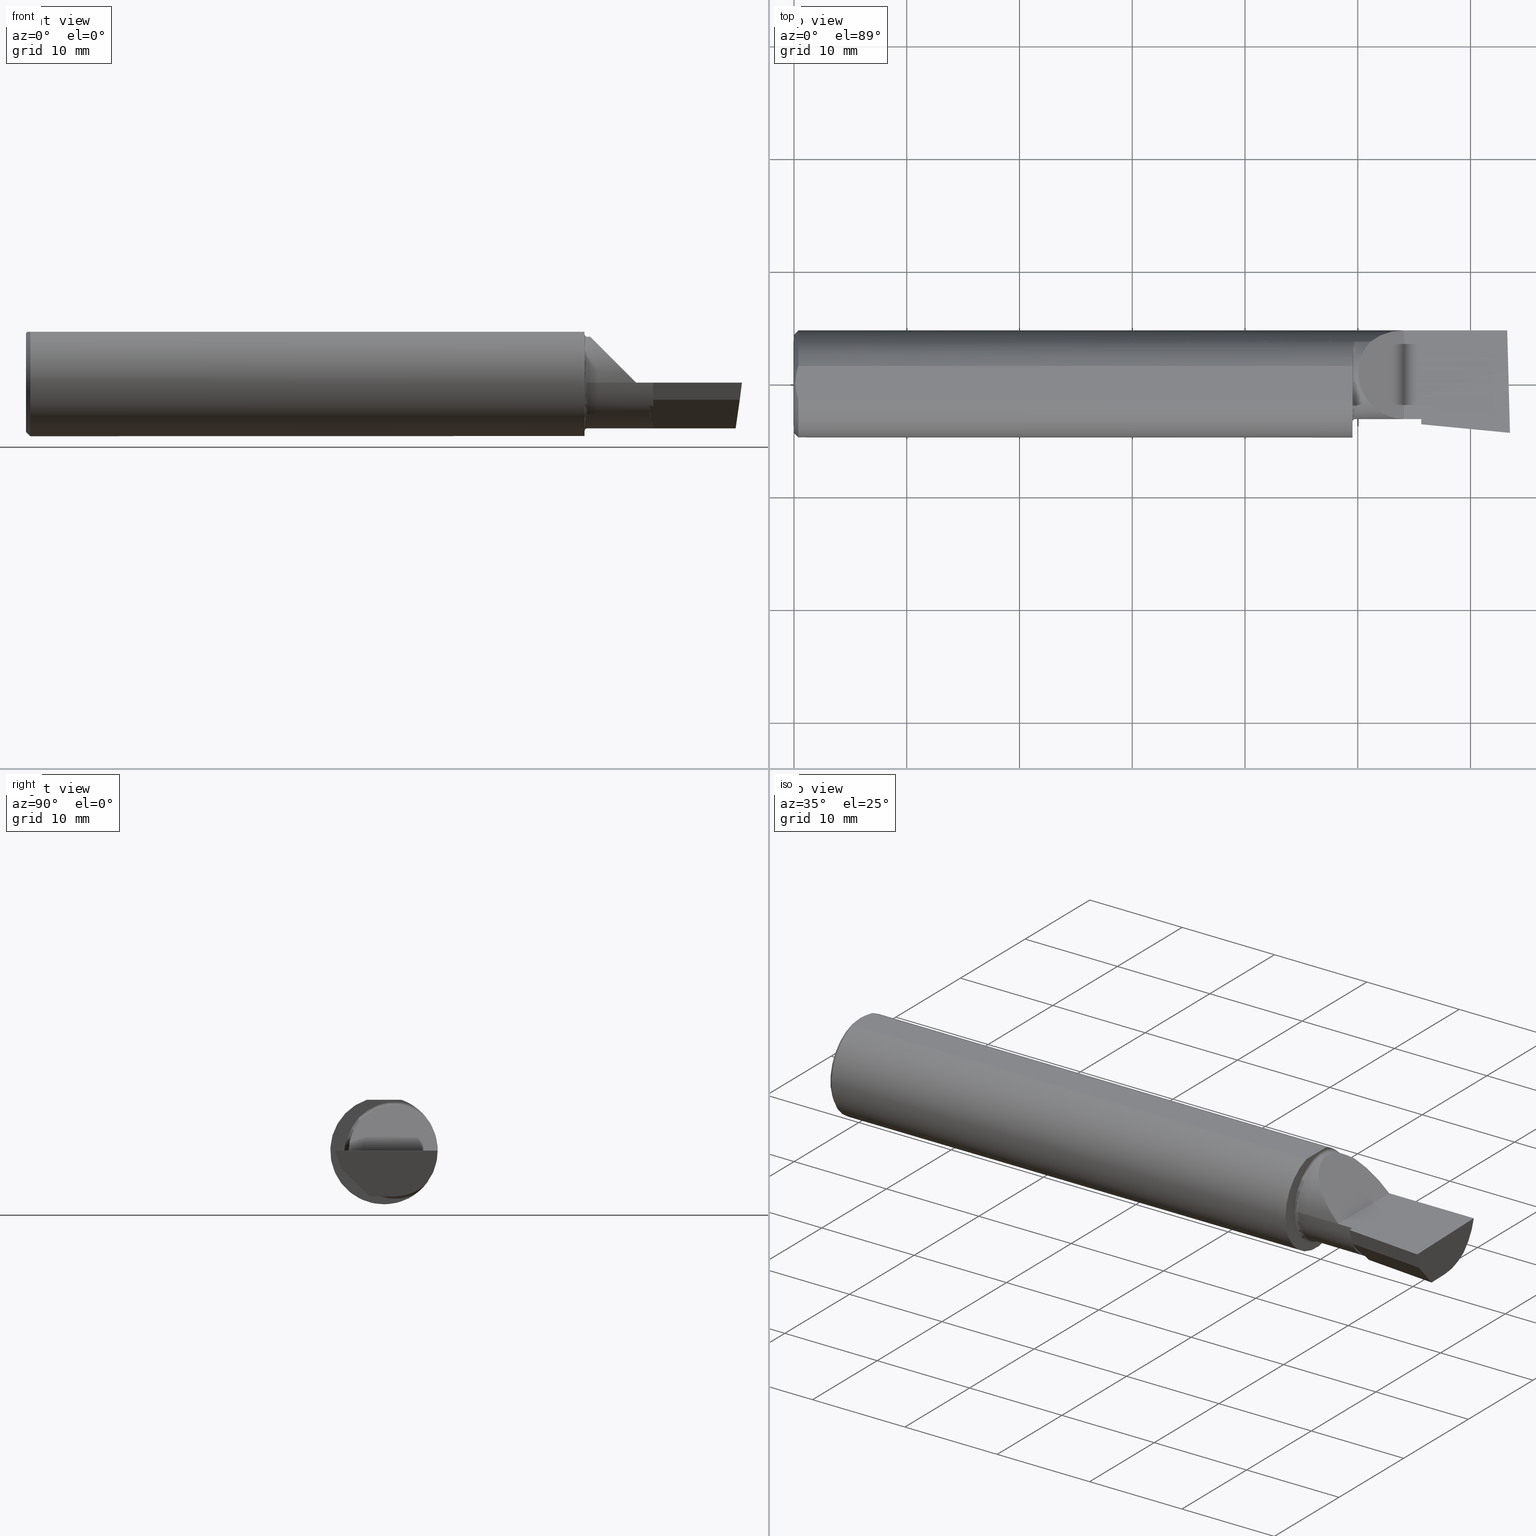
[diagram: canonical four-view strip — front | top / right | iso, engineering-drawing reading convention]
A machine part, canonical four-view strip (front | top / right | iso — engineering-drawing reading convention). The complete STEP part file that produces these views, byte-faithful:
ISO-10303-21;
HEADER;
FILE_DESCRIPTION (( 'STEP AP203' ),
    '1' );
FILE_NAME ('212130-LHB360500.STEP',
    '2024-08-27T20:59:36',
    ( '' ),
    ( '' ),
    'SwSTEP 2.0',
    'SolidWorks 2024',
    '' );
FILE_SCHEMA (( 'CONFIG_CONTROL_DESIGN' ));
ENDSEC;

DATA;
#1 = DIRECTION ( 'NONE',  ( -1.000000000000000000, 6.829619984160658046E-18, -0.000000000000000000 ) ) ;
#2 = EDGE_CURVE ( 'NONE', #267, #449, #276, .T. ) ;
#3 = CARTESIAN_POINT ( 'NONE',  ( 1.902393788885675230, 0.02584108761840278254, 0.2276062111143223043 ) ) ;
#4 = APPROVAL_STATUS ( 'not_yet_approved' ) ;
#5 = CARTESIAN_POINT ( 'NONE',  ( 2.175820948016079726, -0.1204296831016317265, -0.05999999999999983125 ) ) ;
#6 = CARTESIAN_POINT ( 'NONE',  ( 1.950000000000000178, -0.06039039658753697637, 0.1773499999999999799 ) ) ;
#7 = EDGE_CURVE ( 'NONE', #279, #362, #379, .T. ) ;
#8 = ORIENTED_EDGE ( 'NONE', *, *, #97, .T. ) ;
#9 = PERSON_AND_ORGANIZATION ( #331, #674 ) ;
#10 = CARTESIAN_POINT ( 'NONE',  ( 2.178943348991506213, -0.08800230912842126052, -0.1032508154956445351 ) ) ;
#11 = EDGE_CURVE ( 'NONE', #477, #620, #131, .T. ) ;
#12 = EDGE_LOOP ( 'NONE', ( #187, #143, #112, #452 ) ) ;
#13 = AXIS2_PLACEMENT_3D ( 'NONE', #326, #652, #437 ) ;
#14 = CARTESIAN_POINT ( 'NONE',  ( 0.01499999999999999424, 0.000000000000000000, 0.000000000000000000 ) ) ;
#15 = DIRECTION ( 'NONE',  ( -0.9953961983671787417, 0.09584575252022420333, -1.549503674720205804E-17 ) ) ;
#16 = LINE ( 'NONE', #399, #85 ) ;
#17 = DIRECTION ( 'NONE',  ( 1.000000000000000000, -6.829619984160658046E-18, 0.000000000000000000 ) ) ;
#18 = ORIENTED_EDGE ( 'NONE', *, *, #357, .T. ) ;
#19 = CARTESIAN_POINT ( 'NONE',  ( 1.957909242887170276, 0.1445870704379408622, -0.1191421054870969581 ) ) ;
#20 = CC_DESIGN_APPROVAL ( #193, ( #567 ) ) ;
#21 = CARTESIAN_POINT ( 'NONE',  ( 2.129999999999999893, 0.1873499999999998222, 2.290089514405551589E-16 ) ) ;
#22 = ORIENTED_EDGE ( 'NONE', *, *, #33, .F. ) ;
#23 = AXIS2_PLACEMENT_3D ( 'NONE', #673, #396, #76 ) ;
#24 = CARTESIAN_POINT ( 'NONE',  ( 1.958770022656895371, 0.1452078353828880897, -0.1183847404910813444 ) ) ;
#25 = AXIS2_PLACEMENT_3D ( 'NONE', #419, #646, #271 ) ;
#26 = PLANE ( 'NONE',  #264 ) ;
#27 = ORIENTED_EDGE ( 'NONE', *, *, #268, .F. ) ;
#28 = CARTESIAN_POINT ( 'NONE',  ( 0.000000000000000000, 0.000000000000000000, 0.000000000000000000 ) ) ;
#29 = LINE ( 'NONE', #451, #107 ) ;
#30 = ADVANCED_FACE ( 'NONE', ( #439 ), #649, .T. ) ;
#31 = DIRECTION ( 'NONE',  ( 1.000000000000000000, 0.000000000000000000, 0.000000000000000000 ) ) ;
#32 = CARTESIAN_POINT ( 'NONE',  ( 2.485269663752128988, 0.1873500000000000443, -0.04340998088356425727 ) ) ;
#33 = EDGE_CURVE ( 'NONE', #215, #77, #122, .T. ) ;
#34 = PERSON_AND_ORGANIZATION_ROLE ( 'creator' ) ;
#35 = CARTESIAN_POINT ( 'NONE',  ( 2.474391802280965447, 0.07789060880782650020, -0.1600499999999999978 ) ) ;
#36 = EDGE_CURVE ( 'NONE', #449, #174, #335, .T. ) ;
#37 = CARTESIAN_POINT ( 'NONE',  ( 0.01499999999999999424, 0.000000000000000000, 0.000000000000000000 ) ) ;
#38 = VERTEX_POINT ( 'NONE', #282 ) ;
#39 = PERSON_AND_ORGANIZATION ( #331, #674 ) ;
#40 = CARTESIAN_POINT ( 'NONE',  ( 2.045676520271627830, 0.1728409665178085586, 0.08432347972837210548 ) ) ;
#41 = ORIENTED_EDGE ( 'NONE', *, *, #315, .F. ) ;
#42 = LOCAL_TIME ( 13, 59, 36.00000000000000000, #541 ) ;
#43 = ORIENTED_EDGE ( 'NONE', *, *, #244, .T. ) ;
#44 = DIRECTION ( 'NONE',  ( -0.06717917588521388206, -0.6976824170844043715, 0.7132504491541848957 ) ) ;
#45 = CARTESIAN_POINT ( 'NONE',  ( 0.005896899252109526549, -0.02043863390046160924, 0.1773500000000000354 ) ) ;
#46 = VECTOR ( 'NONE', #15, 39.37007874015748854 ) ;
#47 = ORIENTED_EDGE ( 'NONE', *, *, #244, .F. ) ;
#48 = AXIS2_PLACEMENT_3D ( 'NONE', #37, #471, #691 ) ;
#49 = CARTESIAN_POINT ( 'NONE',  ( 2.189999999999999947, -0.04642774919836933911, -0.1363411565314570917 ) ) ;
#50 = EDGE_LOOP ( 'NONE', ( #319, #63 ) ) ;
#51 = CALENDAR_DATE ( 2024, 27, 8 ) ;
#52 = DIRECTION ( 'NONE',  ( -0.1175789623991730093, 0.000000000000000000, -0.9930635365378863710 ) ) ;
#53 = ORIENTED_EDGE ( 'NONE', *, *, #229, .T. ) ;
#54 = ADVANCED_FACE ( 'NONE', ( #62 ), #494, .F. ) ;
#55 = ORIENTED_EDGE ( 'NONE', *, *, #252, .T. ) ;
#56 = CALENDAR_DATE ( 2024, 27, 8 ) ;
#57 = CARTESIAN_POINT ( 'NONE',  ( 2.075000000000000178, 0.1454917112299465576, -0.1180346748349053593 ) ) ;
#58 = ORIENTED_EDGE ( 'NONE', *, *, #458, .T. ) ;
#59 = APPROVAL_DATE_TIME ( #64, #426 ) ;
#60 = CARTESIAN_POINT ( 'NONE',  ( 2.189999999999999947, 0.03739999999999998881, 0.000000000000000000 ) ) ;
#61 = EDGE_CURVE ( 'NONE', #362, #595, #698, .T. ) ;
#62 = FACE_OUTER_BOUND ( 'NONE', #588, .T. ) ;
#63 = ORIENTED_EDGE ( 'NONE', *, *, #614, .T. ) ;
#64 = DATE_AND_TIME ( #378, #172 ) ;
#65 = DIRECTION ( 'NONE',  ( -1.000000000000000000, 6.829619984160658046E-18, -0.000000000000000000 ) ) ;
#66 = CC_DESIGN_PERSON_AND_ORGANIZATION_ASSIGNMENT ( #412, #34, ( #567 ) ) ;
#67 = CARTESIAN_POINT ( 'NONE',  ( 0.000000000000000000, 0.06039039658753699719, 0.1773499999999999799 ) ) ;
#68 = AXIS2_PLACEMENT_3D ( 'NONE', #423, #151, #31 ) ;
#69 = CARTESIAN_POINT ( 'NONE',  ( 0.000000000000000000, 0.000000000000000000, 0.000000000000000000 ) ) ;
#70 = ORIENTED_EDGE ( 'NONE', *, *, #650, .T. ) ;
#71 = DIRECTION ( 'NONE',  ( 0.9953961983671787417, -0.09584575252022417557, -1.557096167792191613E-16 ) ) ;
#72 = CARTESIAN_POINT ( 'NONE',  ( 2.185459073836549138, -0.04532669166221831719, -0.1370135507928378904 ) ) ;
#73 = ORIENTED_EDGE ( 'NONE', *, *, #136, .T. ) ;
#74 =( BOUNDED_CURVE ( )  B_SPLINE_CURVE ( 3, ( #400, #563, #299, #557 ),
 .UNSPECIFIED., .F., .T. ) 
 B_SPLINE_CURVE_WITH_KNOTS ( ( 4, 4 ),
 ( 2.879714720919916093, 2.901033340933480087 ),
 .UNSPECIFIED. ) 
 CURVE ( )  GEOMETRIC_REPRESENTATION_ITEM ( )  RATIONAL_B_SPLINE_CURVE ( ( 1.000000000000000000, 0.9999621267286613602, 0.9999621267286613602, 1.000000000000000000 ) ) 
 REPRESENTATION_ITEM ( '' )  );
#75 = CARTESIAN_POINT ( 'NONE',  ( 2.500000000000000444, -0.1706500000000001627, 2.390366994456230070E-16 ) ) ;
#76 = DIRECTION ( 'NONE',  ( 0.000000000000000000, -1.000000000000000000, 0.000000000000000000 ) ) ;
#77 = VERTEX_POINT ( 'NONE', #6 ) ;
#78 = ADVANCED_FACE ( 'NONE', ( #223 ), #668, .F. ) ;
#79 = DIRECTION ( 'NONE',  ( 6.829619984160658046E-18, 1.000000000000000000, -1.438723400918613551E-16 ) ) ;
#80 = LOCAL_TIME ( 13, 59, 36.00000000000000000, #221 ) ;
#81 = CARTESIAN_POINT ( 'NONE',  ( 0.000000000000000000, 0.000000000000000000, -0.1723499999999996424 ) ) ;
#82 = ORIENTED_EDGE ( 'NONE', *, *, #309, .F. ) ;
#83 = VECTOR ( 'NONE', #317, 39.37007874015748143 ) ;
#84 = CARTESIAN_POINT ( 'NONE',  ( 0.000000000000000000, 0.000000000000000000, 0.000000000000000000 ) ) ;
#85 = VECTOR ( 'NONE', #513, 39.37007874015748854 ) ;
#86 = CARTESIAN_POINT ( 'NONE',  ( 2.475494106117762882, 0.03674350325526463262, -0.1600499999999999701 ) ) ;
#87 = EDGE_CURVE ( 'NONE', #592, #595, #636, .T. ) ;
#88 = CARTESIAN_POINT ( 'NONE',  ( 2.189999999999999947, -0.02302137530785867275, -0.1600499999999999701 ) ) ;
#89 = EDGE_CURVE ( 'NONE', #681, #641, #619, .T. ) ;
#90 =( NAMED_UNIT ( * ) PLANE_ANGLE_UNIT ( ) SI_UNIT ( $, .RADIAN. ) );
#91 = CARTESIAN_POINT ( 'NONE',  ( 1.950000000000000178, 0.000000000000000000, 0.000000000000000000 ) ) ;
#92 = AXIS2_PLACEMENT_3D ( 'NONE', #358, #573, #313 ) ;
#93 = DIRECTION ( 'NONE',  ( -6.829619984160658816E-18, -1.000000000000000000, 0.000000000000000000 ) ) ;
#94 = DIRECTION ( 'NONE',  ( 6.829619984160658046E-18, 1.000000000000000000, 0.000000000000000000 ) ) ;
#95 = VECTOR ( 'NONE', #625, 39.37007874015748143 ) ;
#96 = ORIENTED_EDGE ( 'NONE', *, *, #391, .T. ) ;
#97 = EDGE_CURVE ( 'NONE', #77, #499, #561, .T. ) ;
#98 = MECHANICAL_CONTEXT ( 'NONE', #508, 'mechanical' ) ;
#99 = CARTESIAN_POINT ( 'NONE',  ( 2.490409415965618933, 0.1873499999999998777, 1.722253598772638556E-16 ) ) ;
#100 = ORIENTED_EDGE ( 'NONE', *, *, #309, .T. ) ;
#101 = CARTESIAN_POINT ( 'NONE',  ( 2.475476519002682618, 0.03739999999999996799, -0.1600499999999999701 ) ) ;
#102 = DIRECTION ( 'NONE',  ( -1.000000000000000000, 6.829619984160658046E-18, -0.000000000000000000 ) ) ;
#103 = CC_DESIGN_DATE_AND_TIME_ASSIGNMENT ( #651, #371, ( #686 ) ) ;
#104 = VERTEX_POINT ( 'NONE', #21 ) ;
#105 = APPROVAL_ROLE ( '' ) ;
#106 = DIRECTION ( 'NONE',  ( -6.829619984160658816E-18, -1.000000000000000000, 1.075544278672776307E-33 ) ) ;
#107 = VECTOR ( 'NONE', #138, 39.37007874015748143 ) ;
#108 = ORIENTED_EDGE ( 'NONE', *, *, #294, .F. ) ;
#109 = ADVANCED_FACE ( 'NONE', ( #568 ), #239, .F. ) ;
#110 = DIRECTION ( 'NONE',  ( -0.09584575252022423109, -0.9953961983671787417, 0.000000000000000000 ) ) ;
#111 = PRODUCT ( '212130-LHB360500', '212130-LHB360500', '', ( #98 ) ) ;
#112 = ORIENTED_EDGE ( 'NONE', *, *, #348, .T. ) ;
#113 = CC_DESIGN_PERSON_AND_ORGANIZATION_ASSIGNMENT ( #320, #486, ( #511 ) ) ;
#114 = ORIENTED_EDGE ( 'NONE', *, *, #240, .F. ) ;
#115 = LINE ( 'NONE', #442, #266 ) ;
#116 = ORIENTED_EDGE ( 'NONE', *, *, #7, .T. ) ;
#117 = AXIS2_PLACEMENT_3D ( 'NONE', #14, #181, #234 ) ;
#118 = DATE_AND_TIME ( #643, #418 ) ;
#119 = CARTESIAN_POINT ( 'NONE',  ( 1.950000000000000178, 0.2373500000000000332, 0.1773499999999999521 ) ) ;
#120 = MANIFOLD_SOLID_BREP ( 'Extrude7', #655 ) ;
#121 = CARTESIAN_POINT ( 'NONE',  ( 2.486877961997428166, -0.1130647732409290895, -0.09779851461133440282 ) ) ;
#122 = CIRCLE ( 'NONE', #459, 0.1873499999999999888 ) ;
#123 = AXIS2_PLACEMENT_3D ( 'NONE', #164, #1, #697 ) ;
#124 =( BOUNDED_CURVE ( )  B_SPLINE_CURVE ( 3, ( #529, #152, #32, #99 ),
 .UNSPECIFIED., .F., .T. ) 
 B_SPLINE_CURVE_WITH_KNOTS ( ( 4, 4 ),
 ( 0.6667001948156788815, 1.348282100702878017 ),
 .UNSPECIFIED. ) 
 CURVE ( )  GEOMETRIC_REPRESENTATION_ITEM ( )  RATIONAL_B_SPLINE_CURVE ( ( 1.000000000000000000, 0.9616603987079548332, 0.9616603987079548332, 1.000000000000000000 ) ) 
 REPRESENTATION_ITEM ( '' )  );
#125 = DIMENSIONAL_EXPONENTS ( 1.000000000000000000, 0.000000000000000000, 0.000000000000000000, 0.000000000000000000, 0.000000000000000000, 0.000000000000000000, 0.000000000000000000 ) ;
#126 = ORIENTED_EDGE ( 'NONE', *, *, #609, .F. ) ;
#127 = FACE_OUTER_BOUND ( 'NONE', #312, .T. ) ;
#128 = ORIENTED_EDGE ( 'NONE', *, *, #528, .F. ) ;
#129 =( BOUNDED_CURVE ( )  B_SPLINE_CURVE ( 3, ( #218, #269, #10, #497 ),
 .UNSPECIFIED., .F., .T. ) 
 B_SPLINE_CURVE_WITH_KNOTS ( ( 4, 4 ),
 ( 5.251556333387601860, 5.766084773522285545 ),
 .UNSPECIFIED. ) 
 CURVE ( )  GEOMETRIC_REPRESENTATION_ITEM ( )  RATIONAL_B_SPLINE_CURVE ( ( 1.000000000000000000, 0.9780597844036217348, 0.9780597844036217348, 1.000000000000000000 ) ) 
 REPRESENTATION_ITEM ( '' )  );
#130 = CARTESIAN_POINT ( 'NONE',  ( 1.960000000000000409, 0.1454917112299468074, 0.1180346748349052344 ) ) ;
#131 = LINE ( 'NONE', #339, #344 ) ;
#132 = ORIENTED_EDGE ( 'NONE', *, *, #165, .F. ) ;
#133 = DIRECTION ( 'NONE',  ( 0.000000000000000000, 0.000000000000000000, 1.000000000000000000 ) ) ;
#134 = VECTOR ( 'NONE', #44, 39.37007874015748854 ) ;
#135 = CARTESIAN_POINT ( 'NONE',  ( 0.005000000000000064289, 2.941982644279459108E-17, 0.1773499999999999799 ) ) ;
#136 = EDGE_CURVE ( 'NONE', #448, #201, #74, .T. ) ;
#137 = CARTESIAN_POINT ( 'NONE',  ( 1.960000000000000409, 0.1454917112299467241, -0.1180346748349053038 ) ) ;
#138 = DIRECTION ( 'NONE',  ( 1.000000000000000000, -6.829619984160658046E-18, 0.000000000000000000 ) ) ;
#139 = EDGE_CURVE ( 'NONE', #449, #681, #407, .T. ) ;
#140 = ORIENTED_EDGE ( 'NONE', *, *, #385, .T. ) ;
#141 = FACE_OUTER_BOUND ( 'NONE', #429, .T. ) ;
#142 = CARTESIAN_POINT ( 'NONE',  ( 0.000000000000000000, -0.06039039658753694861, 0.1773499999999999799 ) ) ;
#143 = ORIENTED_EDGE ( 'NONE', *, *, #36, .T. ) ;
#144 = FACE_OUTER_BOUND ( 'NONE', #12, .T. ) ;
#145 = DIRECTION ( 'NONE',  ( -6.829619984160658046E-18, -1.000000000000000000, 0.000000000000000000 ) ) ;
#146 = CARTESIAN_POINT ( 'NONE',  ( 2.189999999999999947, -0.1661090091505227351, -0.01511331185988414039 ) ) ;
#147 = CIRCLE ( 'NONE', #478, 0.1600499999999999701 ) ;
#148 = APPROVAL ( #4, 'UNSPECIFIED' ) ;
#149 = DIRECTION ( 'NONE',  ( -1.000000000000000000, 0.000000000000000000, 1.574823022609152926E-16 ) ) ;
#150 = CARTESIAN_POINT ( 'NONE',  ( 1.950000000000000178, 0.06039039658753701106, 0.1773499999999999799 ) ) ;
#151 = DIRECTION ( 'NONE',  ( 0.000000000000000000, 0.000000000000000000, 1.000000000000000000 ) ) ;
#152 = CARTESIAN_POINT ( 'NONE',  ( 2.480814183058313027, 0.1728409665178086974, -0.08432347972837193895 ) ) ;
#153 = ORIENTED_EDGE ( 'NONE', *, *, #675, .T. ) ;
#154 = DIRECTION ( 'NONE',  ( 0.000000000000000000, -0.3019700370129924649, 0.9533174165755977647 ) ) ;
#155 = PLANE ( 'NONE',  #601 ) ;
#156 = AXIS2_PLACEMENT_3D ( 'NONE', #454, #184, #149 ) ;
#157 = ORIENTED_EDGE ( 'NONE', *, *, #11, .T. ) ;
#158 = EDGE_CURVE ( 'NONE', #177, #607, #617, .T. ) ;
#159 = CARTESIAN_POINT ( 'NONE',  ( 2.189999999999999947, -0.2500000000000000555, 2.195600133049002074E-16 ) ) ;
#160 = ORIENTED_EDGE ( 'NONE', *, *, #329, .F. ) ;
#161 = DIRECTION ( 'NONE',  ( 1.000000000000000000, -6.829619984160658046E-18, 0.000000000000000000 ) ) ;
#162 = ORIENTED_EDGE ( 'NONE', *, *, #158, .F. ) ;
#163 = COORDINATED_UNIVERSAL_TIME_OFFSET ( 8, 0, .BEHIND. ) ;
#164 = CARTESIAN_POINT ( 'NONE',  ( 0.000000000000000000, 0.03740000000000000269, 0.000000000000000000 ) ) ;
#165 = EDGE_CURVE ( 'NONE', #280, #279, #235, .T. ) ;
#166 = CIRCLE ( 'NONE', #23, 0.1600499999999999701 ) ;
#167 = DIRECTION ( 'NONE',  ( 1.000000000000000000, -6.829619984160658046E-18, 0.000000000000000000 ) ) ;
#168 = CARTESIAN_POINT ( 'NONE',  ( 2.477837650838079497, -0.05073698874247281609, -0.1600499999999999701 ) ) ;
#169 = ORIENTED_EDGE ( 'NONE', *, *, #261, .T. ) ;
#170 = CARTESIAN_POINT ( 'NONE',  ( 2.188065304644855047, 0.006732822479022671641, -0.1900000000000009182 ) ) ;
#171 = DIRECTION ( 'NONE',  ( 0.000000000000000000, 0.000000000000000000, 1.000000000000000000 ) ) ;
#172 = LOCAL_TIME ( 13, 59, 36.00000000000000000, #163 ) ;
#173 = DATE_AND_TIME ( #56, #42 ) ;
#174 = VERTEX_POINT ( 'NONE', #88 ) ;
#175 = VECTOR ( 'NONE', #547, 39.37007874015748143 ) ;
#176 = AXIS2_PLACEMENT_3D ( 'NONE', #84, #453, #289 ) ;
#177 = VERTEX_POINT ( 'NONE', #81 ) ;
#178 = CARTESIAN_POINT ( 'NONE',  ( 1.956216587669451057, 0.1423502170013168922, 0.1218111458006545245 ) ) ;
#179 = ORIENTED_EDGE ( 'NONE', *, *, #476, .T. ) ;
#180 = ORIENTED_EDGE ( 'NONE', *, *, #582, .F. ) ;
#181 = DIRECTION ( 'NONE',  ( 1.000000000000000000, 0.000000000000000000, 0.000000000000000000 ) ) ;
#182 = CARTESIAN_POINT ( 'NONE',  ( 2.187757153469975790, -0.04587823668963943863, -0.1366790178048616633 ) ) ;
#183 = DIRECTION ( 'NONE',  ( 0.000000000000000000, -1.000000000000000000, 1.779396822287333614E-16 ) ) ;
#184 = DIRECTION ( 'NONE',  ( -1.574823022609152926E-16, 0.000000000000000000, -1.000000000000000000 ) ) ;
#185 = EDGE_CURVE ( 'NONE', #362, #389, #29, .T. ) ;
#186 = AXIS2_PLACEMENT_3D ( 'NONE', #249, #200, #303 ) ;
#187 = ORIENTED_EDGE ( 'NONE', *, *, #139, .F. ) ;
#188 = CARTESIAN_POINT ( 'NONE',  ( 2.507570346891564217, -0.1713789414967140101, 1.695483039466191173E-16 ) ) ;
#189 = EDGE_CURVE ( 'NONE', #201, #389, #166, .T. ) ;
#190 = PLANE ( 'NONE',  #209 ) ;
#191 =( BOUNDED_CURVE ( )  B_SPLINE_CURVE ( 3, ( #367, #40, #575, #198 ),
 .UNSPECIFIED., .F., .T. ) 
 B_SPLINE_CURVE_WITH_KNOTS ( ( 4, 4 ),
 ( 0.8892144209076978667, 1.570796326794894560 ),
 .UNSPECIFIED. ) 
 CURVE ( )  GEOMETRIC_REPRESENTATION_ITEM ( )  RATIONAL_B_SPLINE_CURVE ( ( 1.000000000000000000, 0.9616603987079550553, 0.9616603987079550553, 1.000000000000000000 ) ) 
 REPRESENTATION_ITEM ( '' )  );
#192 = FACE_OUTER_BOUND ( 'NONE', #401, .T. ) ;
#193 = APPROVAL ( #366, 'UNSPECIFIED' ) ;
#194 = LINE ( 'NONE', #67, #388 ) ;
#195 = CARTESIAN_POINT ( 'NONE',  ( 0.01499999999999999424, 0.000000000000000000, 0.000000000000000000 ) ) ;
#196 = CIRCLE ( 'NONE', #524, 0.1700500000000000067 ) ;
#197 = DATE_AND_TIME ( #676, #382 ) ;
#198 = CARTESIAN_POINT ( 'NONE',  ( 2.129999999999999893, 0.1873499999999998222, 2.290089514405551589E-16 ) ) ;
#199 = CARTESIAN_POINT ( 'NONE',  ( 1.950000000000000178, 0.1013606951871656864, 0.1575627873933895529 ) ) ;
#200 = DIRECTION ( 'NONE',  ( -1.000000000000000000, -0.000000000000000000, -0.000000000000000000 ) ) ;
#201 = VERTEX_POINT ( 'NONE', #356 ) ;
#202 = FACE_OUTER_BOUND ( 'NONE', #351, .T. ) ;
#203 = CARTESIAN_POINT ( 'NONE',  ( 2.189999999999999947, 0.03739999999999996799, -0.1600499999999999701 ) ) ;
#204 = APPROVAL_PERSON_ORGANIZATION ( #325, #148, #548 ) ;
#205 = ADVANCED_FACE ( 'NONE', ( #192 ), #295, .F. ) ;
#206 = ORIENTED_EDGE ( 'NONE', *, *, #421, .T. ) ;
#207 = CIRCLE ( 'NONE', #589, 0.1873499999999999888 ) ;
#208 = CARTESIAN_POINT ( 'NONE',  ( 0.009318557230853338064, -0.04061090184993773611, 0.1773500000000000354 ) ) ;
#209 = AXIS2_PLACEMENT_3D ( 'NONE', #409, #456, #183 ) ;
#210 = EDGE_LOOP ( 'NONE', ( #663, #58, #128, #47, #160 ) ) ;
#211 = DIRECTION ( 'NONE',  ( -1.000000000000000000, 6.829619984160658046E-18, -0.000000000000000000 ) ) ;
#212 = ORIENTED_EDGE ( 'NONE', *, *, #11, .F. ) ;
#213 = COORDINATED_UNIVERSAL_TIME_OFFSET ( 8, 0, .BEHIND. ) ;
#214 = DIRECTION ( 'NONE',  ( -6.829619984160658046E-18, -1.000000000000000000, 0.000000000000000000 ) ) ;
#215 = VERTEX_POINT ( 'NONE', #510 ) ;
#216 = CARTESIAN_POINT ( 'NONE',  ( 1.957580800664966425, 0.1442412736056271627, 0.1195608849622520758 ) ) ;
#217 = CARTESIAN_POINT ( 'NONE',  ( -1.093080678464913235E-18, -0.1226499999999999674, 0.000000000000000000 ) ) ;
#218 = CARTESIAN_POINT ( 'NONE',  ( 2.183105845092545128, -0.04477313427460049428, -0.1373447432684937464 ) ) ;
#219 = DIRECTION ( 'NONE',  ( 0.02677973311239316423, -0.9996413586354002678, -4.159071407961546428E-18 ) ) ;
#220 = ADVANCED_FACE ( 'NONE', ( #246 ), #26, .F. ) ;
#221 = COORDINATED_UNIVERSAL_TIME_OFFSET ( 8, 0, .BEHIND. ) ;
#222 = FACE_OUTER_BOUND ( 'NONE', #660, .T. ) ;
#223 = FACE_OUTER_BOUND ( 'NONE', #405, .T. ) ;
#224 = ORIENTED_EDGE ( 'NONE', *, *, #650, .F. ) ;
#225 = CARTESIAN_POINT ( 'NONE',  ( 1.950000000000000178, 0.1013606951871656864, 0.1575627873933895529 ) ) ;
#226 = ORIENTED_EDGE ( 'NONE', *, *, #363, .F. ) ;
#227 = AXIS2_PLACEMENT_3D ( 'NONE', #69, #285, #171 ) ;
#228 = AXIS2_PLACEMENT_3D ( 'NONE', #536, #386, #214 ) ;
#229 = EDGE_CURVE ( 'NONE', #607, #499, #515, .T. ) ;
#230 = CARTESIAN_POINT ( 'NONE',  ( 2.490409415965618933, 0.1873499999999998777, 1.722253598772638556E-16 ) ) ;
#231 = DIRECTION ( 'NONE',  ( -1.000000000000000000, 6.829619984160658046E-18, 0.000000000000000000 ) ) ;
#232 = EDGE_LOOP ( 'NONE', ( #416, #226, #531, #472, #224, #114, #553, #584 ) ) ;
#233 = CC_DESIGN_PERSON_AND_ORGANIZATION_ASSIGNMENT ( #441, #593, ( #511 ) ) ;
#234 = DIRECTION ( 'NONE',  ( 0.000000000000000000, 0.000000000000000000, -1.000000000000000000 ) ) ;
#235 = LINE ( 'NONE', #350, #411 ) ;
#236 = ORIENTED_EDGE ( 'NONE', *, *, #685, .T. ) ;
#237 = CONICAL_SURFACE ( 'NONE', #117, 0.1873499999999999888, 0.7853981633974602694 ) ;
#238 = FACE_OUTER_BOUND ( 'NONE', #455, .T. ) ;
#239 = PLANE ( 'NONE',  #156 ) ;
#240 = EDGE_CURVE ( 'NONE', #381, #241, #483, .T. ) ;
#241 = VERTEX_POINT ( 'NONE', #520 ) ;
#242 = CARTESIAN_POINT ( 'NONE',  ( 1.950483388365422677, 0.1180160148311073798, -0.1458664675357447260 ) ) ;
#243 = DIRECTION ( 'NONE',  ( -1.000000000000000000, 6.829619984160658046E-18, -0.000000000000000000 ) ) ;
#244 = EDGE_CURVE ( 'NONE', #635, #307, #438, .T. ) ;
#245 = DIRECTION ( 'NONE',  ( -0.000000000000000000, 1.000000000000000000, -0.000000000000000000 ) ) ;
#246 = FACE_OUTER_BOUND ( 'NONE', #232, .T. ) ;
#247 = PERSON_AND_ORGANIZATION ( #331, #674 ) ;
#248 = VECTOR ( 'NONE', #71, 39.37007874015748143 ) ;
#249 = CARTESIAN_POINT ( 'NONE',  ( 0.01499999999999999424, 0.000000000000000000, 0.000000000000000000 ) ) ;
#250 = APPLICATION_CONTEXT ( 'configuration controlled 3d designs of mechanical parts and assemblies' ) ;
#251 = CONICAL_SURFACE ( 'NONE', #48, 0.1873499999999999888, 0.7853981633974602694 ) ;
#252 = EDGE_CURVE ( 'NONE', #215, #38, #196, .T. ) ;
#253 = DIRECTION ( 'NONE',  ( -1.000000000000000000, 6.829619984160658046E-18, -0.000000000000000000 ) ) ;
#254 = CARTESIAN_POINT ( 'NONE',  ( 2.475117649406747056, 0.1156304438478837349, -0.1453804992321582057 ) ) ;
#255 = VERTEX_POINT ( 'NONE', #688 ) ;
#256 = CARTESIAN_POINT ( 'NONE',  ( 0.005916828623699200637, 0.02060071390057457985, 0.1773500000000000354 ) ) ;
#257 = ORIENTED_EDGE ( 'NONE', *, *, #33, .T. ) ;
#258 = DIRECTION ( 'NONE',  ( -4.798168849487817696E-18, -0.7025528302622682242, 0.7116315905652844664 ) ) ;
#259 = CARTESIAN_POINT ( 'NONE',  ( 2.477555437944267691, 0.1454917112299465576, -0.1180346748349053593 ) ) ;
#260 = ORIENTED_EDGE ( 'NONE', *, *, #261, .F. ) ;
#261 = EDGE_CURVE ( 'NONE', #311, #689, #207, .T. ) ;
#262 =( BOUNDED_CURVE ( )  B_SPLINE_CURVE ( 3, ( #306, #35, #254, #259 ),
 .UNSPECIFIED., .F., .T. ) 
 B_SPLINE_CURVE_WITH_KNOTS ( ( 4, 4 ),
 ( 6.060671081087567025, 6.802126725515766914 ),
 .UNSPECIFIED. ) 
 CURVE ( )  GEOMETRIC_REPRESENTATION_ITEM ( )  RATIONAL_B_SPLINE_CURVE ( ( 1.000000000000000000, 0.9547092712975354667, 0.9547092712975354667, 1.000000000000000000 ) ) 
 REPRESENTATION_ITEM ( '' )  );
#263 = LENGTH_MEASURE_WITH_UNIT ( LENGTH_MEASURE( 0.02539999999999999897 ), #532 );
#264 = AXIS2_PLACEMENT_3D ( 'NONE', #343, #464, #669 ) ;
#265 = FACE_OUTER_BOUND ( 'NONE', #210, .T. ) ;
#266 = VECTOR ( 'NONE', #605, 39.37007874015748143 ) ;
#267 = VERTEX_POINT ( 'NONE', #633 ) ;
#268 = EDGE_CURVE ( 'NONE', #530, #477, #124, .T. ) ;
#269 = CARTESIAN_POINT ( 'NONE',  ( 2.180812283385332506, -0.06859268333180087995, -0.1230935461971111311 ) ) ;
#270 = ORIENTED_EDGE ( 'NONE', *, *, #189, .T. ) ;
#271 = DIRECTION ( 'NONE',  ( 0.000000000000000000, -1.000000000000000000, 0.000000000000000000 ) ) ;
#272 = ORIENTED_EDGE ( 'NONE', *, *, #614, .F. ) ;
#273 = EDGE_CURVE ( 'NONE', #307, #607, #489, .T. ) ;
#274 = DIRECTION ( 'NONE',  ( -1.000000000000000000, 6.829619984160658046E-18, -0.000000000000000000 ) ) ;
#275 = AXIS2_PLACEMENT_3D ( 'NONE', #195, #572, #302 ) ;
#276 = LINE ( 'NONE', #121, #175 ) ;
#277 = CARTESIAN_POINT ( 'NONE',  ( 2.189999999999999947, -0.1217949705215068124, -0.05999999999999983125 ) ) ;
#278 = ADVANCED_FACE ( 'NONE', ( #629 ), #155, .F. ) ;
#279 = VERTEX_POINT ( 'NONE', #523 ) ;
#280 = VERTEX_POINT ( 'NONE', #467 ) ;
#281 = CARTESIAN_POINT ( 'NONE',  ( 2.520823095177882944, -0.1701047280628441849, 0.1759937515040682077 ) ) ;
#282 = CARTESIAN_POINT ( 'NONE',  ( 1.950000000000000178, -0.1326500000000000179, 0.000000000000000000 ) ) ;
#283 = ADVANCED_FACE ( 'NONE', ( #265 ), #414, .F. ) ;
#284 = CARTESIAN_POINT ( 'NONE',  ( 1.960000000000000409, 0.1454917112299467241, -0.1180346748349053038 ) ) ;
#285 = DIRECTION ( 'NONE',  ( -1.000000000000000000, -0.000000000000000000, -0.000000000000000000 ) ) ;
#286 = ORIENTED_EDGE ( 'NONE', *, *, #229, .F. ) ;
#287 = CARTESIAN_POINT ( 'NONE',  ( 0.000000000000000000, 0.000000000000000000, 0.000000000000000000 ) ) ;
#288 = CARTESIAN_POINT ( 'NONE',  ( 1.960000000000000409, 0.03740000000000000269, 0.000000000000000000 ) ) ;
#289 = DIRECTION ( 'NONE',  ( 0.000000000000000000, 0.000000000000000000, -1.000000000000000000 ) ) ;
#290 = CARTESIAN_POINT ( 'NONE',  ( 1.950000000000000178, -0.1326499999999999901, 0.000000000000000000 ) ) ;
#291 = EDGE_LOOP ( 'NONE', ( #212, #479, #376, #559, #540, #370 ) ) ;
#292 = AXIS2_PLACEMENT_3D ( 'NONE', #581, #253, #93 ) ;
#293 = CARTESIAN_POINT ( 'NONE',  ( 1.950000000000000178, 0.1013606951871656864, -0.1575627873933895529 ) ) ;
#294 = EDGE_CURVE ( 'NONE', #389, #647, #533, .T. ) ;
#295 = PLANE ( 'NONE',  #699 ) ;
#296 = VECTOR ( 'NONE', #106, 39.37007874015748143 ) ;
#297 = ORIENTED_EDGE ( 'NONE', *, *, #315, .T. ) ;
#298 = CARTESIAN_POINT ( 'NONE',  ( 1.954404192622242409, 0.1382376748423440327, -0.1264781021717292508 ) ) ;
#299 = CARTESIAN_POINT ( 'NONE',  ( 2.186045468799003189, -0.1005894066173259327, -0.08109389478699442766 ) ) ;
#300 = CARTESIAN_POINT ( 'NONE',  ( 0.005000000000000064289, 2.941982644279459108E-17, 0.1773499999999999799 ) ) ;
#301 = B_SPLINE_CURVE_WITH_KNOTS ( 'NONE', 3,
 ( #587, #583, #208, #45, #469, #481 ),
 .UNSPECIFIED., .F., .F.,
 ( 4, 2, 4 ),
 ( 0.001920996734031360986, 0.002696206145936997766, 0.003471415557842634329 ),
 .UNSPECIFIED. ) ;
#302 = DIRECTION ( 'NONE',  ( 0.000000000000000000, 0.000000000000000000, 1.000000000000000000 ) ) ;
#303 = DIRECTION ( 'NONE',  ( 0.000000000000000000, 0.000000000000000000, 1.000000000000000000 ) ) ;
#304 = VECTOR ( 'NONE', #403, 39.37007874015748143 ) ;
#305 = LINE ( 'NONE', #146, #408 ) ;
#306 = CARTESIAN_POINT ( 'NONE',  ( 2.475476519002682618, 0.03739999999999996799, -0.1600499999999999701 ) ) ;
#307 = VERTEX_POINT ( 'NONE', #677 ) ;
#308 = APPLICATION_PROTOCOL_DEFINITION ( 'international standard', 'config_control_design', 1994, #250 ) ;
#309 = EDGE_CURVE ( 'NONE', #279, #104, #191, .T. ) ;
#310 = CARTESIAN_POINT ( 'NONE',  ( 2.486676692173085179, -0.1361927083222478629, -0.1047313717719617759 ) ) ;
#311 = VERTEX_POINT ( 'NONE', #150 ) ;
#312 = EDGE_LOOP ( 'NONE', ( #659, #96, #236, #606 ) ) ;
#313 = DIRECTION ( 'NONE',  ( 0.000000000000000000, -1.000000000000000000, 0.000000000000000000 ) ) ;
#314 = DIRECTION ( 'NONE',  ( 0.000000000000000000, 1.000000000000000000, -1.438723400918613551E-16 ) ) ;
#315 = EDGE_CURVE ( 'NONE', #681, #530, #262, .T. ) ;
#316 = ORIENTED_EDGE ( 'NONE', *, *, #189, .F. ) ;
#317 = DIRECTION ( 'NONE',  ( -0.000000000000000000, 1.000000000000000000, -1.779396822287333368E-16 ) ) ;
#318 = CIRCLE ( 'NONE', #13, 0.01000000000000016674 ) ;
#319 = ORIENTED_EDGE ( 'NONE', *, *, #582, .T. ) ;
#320 = PERSON_AND_ORGANIZATION ( #331, #674 ) ;
#321 = PLANE ( 'NONE',  #535 ) ;
#322 = ORIENTED_EDGE ( 'NONE', *, *, #158, .T. ) ;
#323 = EDGE_CURVE ( 'NONE', #620, #267, #369, .T. ) ;
#324 = EDGE_LOOP ( 'NONE', ( #272, #460, #43, #512, #162 ) ) ;
#325 = PERSON_AND_ORGANIZATION ( #331, #674 ) ;
#326 = CARTESIAN_POINT ( 'NONE',  ( 1.960000000000000409, -0.1326499999999999901, 0.000000000000000000 ) ) ;
#327 = ORIENTED_EDGE ( 'NONE', *, *, #458, .F. ) ;
#328 = APPROVAL_PERSON_ORGANIZATION ( #247, #193, #480 ) ;
#329 = EDGE_CURVE ( 'NONE', #499, #635, #301, .T. ) ;
#330 = SECURITY_CLASSIFICATION_LEVEL ( 'unclassified' ) ;
#331 = PERSON ( 'UNSPECIFIED', 'UNSPECIFIED', 'UNSPECIFIED', ('UNSPECIFIED'), ('UNSPECIFIED'), ('UNSPECIFIED') ) ;
#332 = CARTESIAN_POINT ( 'NONE',  ( 2.129999999999999893, -0.1226500000000000784, 2.290089514405551589E-16 ) ) ;
#333 = VECTOR ( 'NONE', #519, 39.37007874015748143 ) ;
#334 = VECTOR ( 'NONE', #457, 39.37007874015748143 ) ;
#335 = LINE ( 'NONE', #645, #46 ) ;
#336 = DIRECTION ( 'NONE',  ( 0.9953961983671787417, -0.09584575252022421721, -0.000000000000000000 ) ) ;
#337 = ORIENTED_EDGE ( 'NONE', *, *, #61, .F. ) ;
#338 = FACE_OUTER_BOUND ( 'NONE', #50, .T. ) ;
#339 = CARTESIAN_POINT ( 'NONE',  ( 2.502124209719675196, -0.2499430938217229448, 1.704059741668769989E-16 ) ) ;
#340 = ADVANCED_FACE ( 'NONE', ( #525 ), #251, .T. ) ;
#341 = ORIENTED_EDGE ( 'NONE', *, *, #528, .T. ) ;
#342 = CARTESIAN_POINT ( 'NONE',  ( 0.01499999999999999424, 0.000000000000000000, -0.1873499999999999888 ) ) ;
#343 = CARTESIAN_POINT ( 'NONE',  ( 2.175820948016079726, -0.1204296831016317265, -0.05999999999999983125 ) ) ;
#344 = VECTOR ( 'NONE', #219, 39.37007874015748143 ) ;
#345 = ORIENTED_EDGE ( 'NONE', *, *, #89, .T. ) ;
#346 = CARTESIAN_POINT ( 'NONE',  ( 1.956208682939483579, 0.1423361566194927541, -0.1218275716760978261 ) ) ;
#347 = CARTESIAN_POINT ( 'NONE',  ( 2.500000000000000000, 0.03739999999999996799, -0.1600499999999999701 ) ) ;
#348 = EDGE_CURVE ( 'NONE', #174, #641, #683, .T. ) ;
#349 = PLANE ( 'NONE',  #554 ) ;
#350 = CARTESIAN_POINT ( 'NONE',  ( 2.075000000000000178, 0.1454917112299465576, 0.1180346748349053593 ) ) ;
#351 = EDGE_LOOP ( 'NONE', ( #337, #526, #132, #517 ) ) ;
#352 = AXIS2_PLACEMENT_3D ( 'NONE', #287, #503, #560 ) ;
#353 = CARTESIAN_POINT ( 'NONE',  ( 1.956664569472227777, 0.1431262185210676885, -0.1208975608635248222 ) ) ;
#354 = AXIS2_PLACEMENT_3D ( 'NONE', #666, #243, #622 ) ;
#355 = CIRCLE ( 'NONE', #397, 0.1723499999999996424 ) ;
#356 = CARTESIAN_POINT ( 'NONE',  ( 2.189999999999999947, -0.1000061867039840624, -0.08207035003867028944 ) ) ;
#357 = EDGE_CURVE ( 'NONE', #38, #689, #690, .T. ) ;
#358 = CARTESIAN_POINT ( 'NONE',  ( 1.960000000000000409, 0.03739999999999999575, 0.000000000000000000 ) ) ;
#359 = DIRECTION ( 'NONE',  ( 0.000000000000000000, -1.000000000000000000, 0.000000000000000000 ) ) ;
#360 = APPLICATION_PROTOCOL_DEFINITION ( 'international standard', 'config_control_design', 1994, #508 ) ;
#361 = PRODUCT_DEFINITION_SHAPE ( 'NONE', 'NONE',  #567 ) ;
#362 = VERTEX_POINT ( 'NONE', #332 ) ;
#363 = EDGE_CURVE ( 'NONE', #365, #267, #693, .T. ) ;
#364 = CARTESIAN_POINT ( 'NONE',  ( 1.950000000000000178, 0.03739999999999999575, 0.000000000000000000 ) ) ;
#365 = VERTEX_POINT ( 'NONE', #277 ) ;
#366 = APPROVAL_STATUS ( 'not_yet_approved' ) ;
#367 = CARTESIAN_POINT ( 'NONE',  ( 2.011965325165093965, 0.1454917112299464743, 0.1180346748349054425 ) ) ;
#368 = ORIENTED_EDGE ( 'NONE', *, *, #165, .T. ) ;
#369 = LINE ( 'NONE', #310, #387 ) ;
#370 = ORIENTED_EDGE ( 'NONE', *, *, #609, .T. ) ;
#371 = DATE_TIME_ROLE ( 'classification_date' ) ;
#372 = PLANE ( 'NONE',  #422 ) ;
#373 = DIRECTION ( 'NONE',  ( -1.000000000000000000, 6.829619984160658046E-18, -0.000000000000000000 ) ) ;
#374 = EDGE_CURVE ( 'NONE', #641, #381, #147, .T. ) ;
#375 = DIRECTION ( 'NONE',  ( 0.000000000000000000, -1.000000000000000000, 0.000000000000000000 ) ) ;
#376 = ORIENTED_EDGE ( 'NONE', *, *, #507, .F. ) ;
#377 = ADVANCED_FACE ( 'NONE', ( #222 ), #321, .T. ) ;
#378 = CALENDAR_DATE ( 2024, 27, 8 ) ;
#379 =( BOUNDED_CURVE ( )  B_SPLINE_CURVE ( 3, ( #491, #3, #610, #551 ),
 .UNSPECIFIED., .F., .T. ) 
 B_SPLINE_CURVE_WITH_KNOTS ( ( 4, 4 ),
 ( 5.541729662751386343, 7.853981633974481014 ),
 .UNSPECIFIED. ) 
 CURVE ( )  GEOMETRIC_REPRESENTATION_ITEM ( )  RATIONAL_B_SPLINE_CURVE ( ( 1.000000000000000000, 0.6019254882129727591, 0.6019254882129727591, 1.000000000000000000 ) ) 
 REPRESENTATION_ITEM ( '' )  );
#380 = CARTESIAN_POINT ( 'NONE',  ( 2.177622056381672611, -0.1017244575405930607, -0.07912261253292700303 ) ) ;
#381 = VERTEX_POINT ( 'NONE', #49 ) ;
#382 = LOCAL_TIME ( 13, 59, 36.00000000000000000, #427 ) ;
#383 = ORIENTED_EDGE ( 'NONE', *, *, #670, .F. ) ;
#384 = APPROVAL_STATUS ( 'not_yet_approved' ) ;
#385 = EDGE_CURVE ( 'NONE', #174, #381, #115, .T. ) ;
#386 = DIRECTION ( 'NONE',  ( -1.000000000000000000, 6.829619984160658046E-18, -0.000000000000000000 ) ) ;
#387 = VECTOR ( 'NONE', #415, 39.37007874015748854 ) ;
#388 = VECTOR ( 'NONE', #661, 39.37007874015748143 ) ;
#389 = VERTEX_POINT ( 'NONE', #538 ) ;
#390 = ORIENTED_EDGE ( 'NONE', *, *, #555, .T. ) ;
#391 = EDGE_CURVE ( 'NONE', #38, #595, #318, .T. ) ;
#392 = CARTESIAN_POINT ( 'NONE',  ( 1.957921033727478610, 0.1445976381173497138, 0.1191292621734213464 ) ) ;
#393 = ORIENTED_EDGE ( 'NONE', *, *, #329, .T. ) ;
#394 = ORIENTED_EDGE ( 'NONE', *, *, #374, .F. ) ;
#395 = CARTESIAN_POINT ( 'NONE',  ( 1.952858161161656891, 0.1330631366558206741, -0.1319833113027339411 ) ) ;
#396 = DIRECTION ( 'NONE',  ( -1.000000000000000000, 6.829619984160658046E-18, -0.000000000000000000 ) ) ;
#397 = AXIS2_PLACEMENT_3D ( 'NONE', #28, #463, #133 ) ;
#398 = EDGE_LOOP ( 'NONE', ( #316, #153, #390, #108 ) ) ;
#399 = CARTESIAN_POINT ( 'NONE',  ( 2.189999999999999947, -0.1417122540912992557, 0.002878732955684700379 ) ) ;
#400 = CARTESIAN_POINT ( 'NONE',  ( 2.177622056381672611, -0.1017244575405930607, -0.07912261253292700303 ) ) ;
#401 = EDGE_LOOP ( 'NONE', ( #55, #18, #260, #327, #22 ) ) ;
#402 = PLANE ( 'NONE',  #586 ) ;
#403 = DIRECTION ( 'NONE',  ( -1.000000000000000000, -0.000000000000000000, -0.000000000000000000 ) ) ;
#404 = ADVANCED_FACE ( 'NONE', ( #127 ), #447, .F. ) ;
#405 = EDGE_LOOP ( 'NONE', ( #656, #632, #534, #580 ) ) ;
#406 = LINE ( 'NONE', #621, #657 ) ;
#407 = LINE ( 'NONE', #86, #334 ) ;
#408 = VECTOR ( 'NONE', #258, 39.37007874015748143 ) ;
#409 = CARTESIAN_POINT ( 'NONE',  ( 2.500000000000000000, 0.03739999999999996799, -0.1600499999999999701 ) ) ;
#410 = DIRECTION ( 'NONE',  ( -1.000000000000000000, 6.829619984160658046E-18, -0.000000000000000000 ) ) ;
#411 = VECTOR ( 'NONE', #17, 39.37007874015748143 ) ;
#412 = PERSON_AND_ORGANIZATION ( #331, #674 ) ;
#413 = EDGE_CURVE ( 'NONE', #530, #592, #549, .T. ) ;
#414 = PLANE ( 'NONE',  #678 ) ;
#415 = DIRECTION ( 'NONE',  ( -0.1199690778467080582, 0.3102690083707262403, -0.9430485474275736024 ) ) ;
#416 = ORIENTED_EDGE ( 'NONE', *, *, #2, .F. ) ;
#417 = CARTESIAN_POINT ( 'NONE',  ( 2.175820948016079726, -0.1204296831016317265, -0.05999999999999983125 ) ) ;
#418 = LOCAL_TIME ( 13, 59, 36.00000000000000000, #213 ) ;
#419 = CARTESIAN_POINT ( 'NONE',  ( 1.950000000000000178, 0.03739999999999999575, 0.000000000000000000 ) ) ;
#420 = ORIENTED_EDGE ( 'NONE', *, *, #374, .T. ) ;
#421 = EDGE_CURVE ( 'NONE', #241, #448, #129, .T. ) ;
#422 = AXIS2_PLACEMENT_3D ( 'NONE', #170, #590, #110 ) ;
#423 = CARTESIAN_POINT ( 'NONE',  ( 0.000000000000000000, 0.000000000000000000, 0.000000000000000000 ) ) ;
#424 = DIRECTION ( 'NONE',  ( 0.000000000000000000, -1.438723400918613551E-16, -1.000000000000000000 ) ) ;
#425 = EDGE_LOOP ( 'NONE', ( #70, #443 ) ) ;
#426 = APPROVAL ( #384, 'UNSPECIFIED' ) ;
#427 = COORDINATED_UNIVERSAL_TIME_OFFSET ( 8, 0, .BEHIND. ) ;
#428 = CARTESIAN_POINT ( 'NONE',  ( 2.189999999999999947, -0.1508003950587631925, 0.000000000000000000 ) ) ;
#429 = EDGE_LOOP ( 'NONE', ( #383, #180, #322, #53, #393 ) ) ;
#430 = UNCERTAINTY_MEASURE_WITH_UNIT (LENGTH_MEASURE( 1.000000000000000082E-05 ), #578, 'distance_accuracy_value', 'NONE');
#431 = EDGE_CURVE ( 'NONE', #689, #280, #521, .T. ) ;
#432 = CARTESIAN_POINT ( 'NONE',  ( 1.954402240695038984, 0.1382337250035445830, 0.1264828452200233155 ) ) ;
#433 = ORIENTED_EDGE ( 'NONE', *, *, #323, .F. ) ;
#434 = FACE_OUTER_BOUND ( 'NONE', #425, .T. ) ;
#435 = ADVANCED_FACE ( 'NONE', ( #644 ), #648, .T. ) ;
#436 = CARTESIAN_POINT ( 'NONE',  ( 2.189999999999999947, -0.1508003950587631925, 0.000000000000000000 ) ) ;
#437 = DIRECTION ( 'NONE',  ( -1.000000000000000000, 0.000000000000000000, 0.000000000000000000 ) ) ;
#438 = B_SPLINE_CURVE_WITH_KNOTS ( 'NONE', 3,
 ( #135, #462, #256, #475, #680, #579 ),
 .UNSPECIFIED., .F., .F.,
 ( 4, 2, 4 ),
 ( 0.003471415557842634329, 0.004247578446323233697, 0.005023741334803832198 ),
 .UNSPECIFIED. ) ;
#439 = FACE_OUTER_BOUND ( 'NONE', #506, .T. ) ;
#440 = ADVANCED_FACE ( 'NONE', ( #434 ), #372, .F. ) ;
#441 = PERSON_AND_ORGANIZATION ( #331, #674 ) ;
#442 = CARTESIAN_POINT ( 'NONE',  ( 2.189999999999999947, -0.1661090091505227351, -0.01511331185988414039 ) ) ;
#443 = ORIENTED_EDGE ( 'NONE', *, *, #421, .F. ) ;
#444 = CC_DESIGN_SECURITY_CLASSIFICATION ( #686, ( #511 ) ) ;
#445 = ORIENTED_EDGE ( 'NONE', *, *, #2, .T. ) ;
#446 = CARTESIAN_POINT ( 'NONE',  ( 1.952149571221041047, 0.1293863363941682720, 0.1355911774285943894 ) ) ;
#447 = TOROIDAL_SURFACE ( 'NONE', #228, 0.1700500000000000067, 0.01000000000000007307 ) ;
#448 = VERTEX_POINT ( 'NONE', #380 ) ;
#449 = VERTEX_POINT ( 'NONE', #168 ) ;
#450 = CARTESIAN_POINT ( 'NONE',  ( 1.950000000000001066, 0.1099295023601599836, -0.1520504436074740784 ) ) ;
#451 = CARTESIAN_POINT ( 'NONE',  ( -1.093080678464824064E-18, -0.1226499999999999396, 5.644462552563044730E-16 ) ) ;
#452 = ORIENTED_EDGE ( 'NONE', *, *, #89, .F. ) ;
#453 = DIRECTION ( 'NONE',  ( 1.000000000000000000, 0.000000000000000000, 0.000000000000000000 ) ) ;
#454 = CARTESIAN_POINT ( 'NONE',  ( 2.500000000000000000, -0.2500000000000000555, 1.707404996040164512E-16 ) ) ;
#455 = EDGE_LOOP ( 'NONE', ( #82, #116, #639 ) ) ;
#456 = DIRECTION ( 'NONE',  ( -0.000000000000000000, 1.779396822287333614E-16, 1.000000000000000000 ) ) ;
#457 = DIRECTION ( 'NONE',  ( -0.02677973311239318505, 0.9996413586354002678, -1.778823206104526846E-16 ) ) ;
#458 = EDGE_CURVE ( 'NONE', #77, #311, #598, .T. ) ;
#459 = AXIS2_PLACEMENT_3D ( 'NONE', #501, #65, #654 ) ;
#460 = ORIENTED_EDGE ( 'NONE', *, *, #670, .T. ) ;
#461 = CARTESIAN_POINT ( 'NONE',  ( 1.957567572594821392, 0.1442269357022577247, -0.1195781817710042938 ) ) ;
#462 = CARTESIAN_POINT ( 'NONE',  ( 0.005000000000000065156, 0.01027925662263780987, 0.1773499999999999521 ) ) ;
#463 = DIRECTION ( 'NONE',  ( -1.000000000000000000, -0.000000000000000000, -0.000000000000000000 ) ) ;
#464 = DIRECTION ( 'NONE',  ( 0.06836202603457078308, 0.7099667855717585185, 0.7009092642998474565 ) ) ;
#465 = ADVANCED_FACE ( 'NONE', ( #144 ), #190, .F. ) ;
#466 = CARTESIAN_POINT ( 'NONE',  ( 2.189999999999999947, -0.1408003950587630171, 2.192948291789086321E-16 ) ) ;
#467 = CARTESIAN_POINT ( 'NONE',  ( 1.960000000000000409, 0.1454917112299468074, 0.1180346748349052344 ) ) ;
#468 = CARTESIAN_POINT ( 'NONE',  ( 2.175820948016079726, -0.1204296831016317265, -0.05999999999999983125 ) ) ;
#469 = CARTESIAN_POINT ( 'NONE',  ( 0.005000000000000066891, -0.01026662907944657019, 0.1773499999999999521 ) ) ;
#470 = ORIENTED_EDGE ( 'NONE', *, *, #268, .T. ) ;
#471 = DIRECTION ( 'NONE',  ( 1.000000000000000000, 0.000000000000000000, 0.000000000000000000 ) ) ;
#472 = ORIENTED_EDGE ( 'NONE', *, *, #136, .F. ) ;
#473 = LINE ( 'NONE', #682, #615 ) ;
#474 = APPROVAL_PERSON_ORGANIZATION ( #603, #426, #105 ) ;
#475 = CARTESIAN_POINT ( 'NONE',  ( 0.009346310357819969869, 0.04072930668827118295, 0.1773499999999999799 ) ) ;
#476 = EDGE_CURVE ( 'NONE', #592, #215, #504, .T. ) ;
#477 = VERTEX_POINT ( 'NONE', #230 ) ;
#478 = AXIS2_PLACEMENT_3D ( 'NONE', #60, #594, #375 ) ;
#479 = ORIENTED_EDGE ( 'NONE', *, *, #577, .F. ) ;
#480 = APPROVAL_ROLE ( '' ) ;
#481 = CARTESIAN_POINT ( 'NONE',  ( 0.005000000000000064289, 2.941982644279459108E-17, 0.1773499999999999799 ) ) ;
#482 = ORIENTED_EDGE ( 'NONE', *, *, #577, .T. ) ;
#483 =( BOUNDED_CURVE ( )  B_SPLINE_CURVE ( 3, ( #662, #182, #72, #613 ),
 .UNSPECIFIED., .F., .T. ) 
 B_SPLINE_CURVE_WITH_KNOTS ( ( 4, 4 ),
 ( 3.382151966246107477, 3.394243161054599334 ),
 .UNSPECIFIED. ) 
 CURVE ( )  GEOMETRIC_REPRESENTATION_ITEM ( )  RATIONAL_B_SPLINE_CURVE ( ( 1.000000000000000000, 0.9999878169544487161, 0.9999878169544487161, 1.000000000000000000 ) ) 
 REPRESENTATION_ITEM ( '' )  );
#484 = CARTESIAN_POINT ( 'NONE',  ( 1.950493306168247676, 0.1180879943980261970, 0.1458023451353284428 ) ) ;
#485 = ORIENTED_EDGE ( 'NONE', *, *, #348, .F. ) ;
#486 = PERSON_AND_ORGANIZATION_ROLE ( 'design_supplier' ) ;
#487 = CARTESIAN_POINT ( 'NONE',  ( 1.952845212421890908, 0.1330145888620361538, 0.1320338710448777375 ) ) ;
#488 = DIRECTION ( 'NONE',  ( 6.829619984160658046E-18, 1.000000000000000000, 0.000000000000000000 ) ) ;
#489 = CIRCLE ( 'NONE', #186, 0.1873499999999999888 ) ;
#490 = CARTESIAN_POINT ( 'NONE',  ( 1.949999999999999956, 0.1100056335683312903, 0.1520014681335481455 ) ) ;
#491 = CARTESIAN_POINT ( 'NONE',  ( 2.011965325165093965, 0.1454917112299464743, 0.1180346748349054425 ) ) ;
#492 = DATE_TIME_ROLE ( 'creation_date' ) ;
#493 = CARTESIAN_POINT ( 'NONE',  ( 1.958780002058964520, 0.1452129146512413094, 0.1183784924451697917 ) ) ;
#494 = PLANE ( 'NONE',  #634 ) ;
#495 = ADVANCED_BREP_SHAPE_REPRESENTATION ( '212130-LHB360500', ( #120, #68 ), #665 ) ;
#496 = ORIENTED_EDGE ( 'NONE', *, *, #139, .T. ) ;
#497 = CARTESIAN_POINT ( 'NONE',  ( 2.177622056381672611, -0.1017244575405930607, -0.07912261253292700303 ) ) ;
#498 = EDGE_LOOP ( 'NONE', ( #433, #126, #565, #537 ) ) ;
#499 = VERTEX_POINT ( 'NONE', #562 ) ;
#500 = CARTESIAN_POINT ( 'NONE',  ( 1.960000000000000409, -0.1226500000000000506, 0.000000000000000000 ) ) ;
#501 = CARTESIAN_POINT ( 'NONE',  ( 1.950000000000000178, 0.000000000000000000, 0.000000000000000000 ) ) ;
#502 = ADVANCED_FACE ( 'NONE', ( #338 ), #671, .F. ) ;
#503 = DIRECTION ( 'NONE',  ( -1.000000000000000000, -0.000000000000000000, -0.000000000000000000 ) ) ;
#504 = B_SPLINE_CURVE_WITH_KNOTS ( 'NONE', 3,
 ( #137, #552, #24, #19, #461, #353, #346, #616, #298, #395, #518, #242, #450, #293 ),
 .UNSPECIFIED., .F., .F.,
 ( 4, 2, 2, 2, 2, 2, 4 ),
 ( 1.967643392425213483E-07, 5.001319782644750143E-05, 9.982963131365247373E-05, 0.0001994624982880524979, 0.0003987282322368515433, 0.0007972597001344497968, 0.001594322635929644027 ),
 .UNSPECIFIED. ) ;
#505 = CARTESIAN_POINT ( 'NONE',  ( 0.01499999999999999424, 0.000000000000000000, -0.1873499999999999888 ) ) ;
#506 = EDGE_LOOP ( 'NONE', ( #27, #576, #179, #257, #8, #286, #600, #341, #169, #692, #368, #100, #482 ) ) ;
#507 = EDGE_CURVE ( 'NONE', #362, #104, #566, .T. ) ;
#508 = APPLICATION_CONTEXT ( 'configuration controlled 3d designs of mechanical parts and assemblies' ) ;
#509 = FACE_OUTER_BOUND ( 'NONE', #498, .T. ) ;
#510 = CARTESIAN_POINT ( 'NONE',  ( 1.950000000000000178, 0.1013606951871656864, -0.1575627873933895529 ) ) ;
#511 = PRODUCT_DEFINITION_FORMATION_WITH_SPECIFIED_SOURCE ( 'ANY', '', #111, .NOT_KNOWN. ) ;
#512 = ORIENTED_EDGE ( 'NONE', *, *, #273, .T. ) ;
#513 = DIRECTION ( 'NONE',  ( -2.062340599401667197E-18, -0.3019700370129924649, 0.9533174165755977647 ) ) ;
#514 = DIRECTION ( 'NONE',  ( -6.829619984160658046E-18, -1.000000000000000000, 0.000000000000000000 ) ) ;
#515 = CIRCLE ( 'NONE', #275, 0.1873499999999999888 ) ;
#516 = VECTOR ( 'NONE', #79, 39.37007874015748143 ) ;
#517 = ORIENTED_EDGE ( 'NONE', *, *, #685, .F. ) ;
#518 = CARTESIAN_POINT ( 'NONE',  ( 1.952152469637252308, 0.1294082664155005447, -0.1355718222394608763 ) ) ;
#519 = DIRECTION ( 'NONE',  ( 0.7071067811865390240, 0.000000000000000000, -0.7071067811865560104 ) ) ;
#520 = CARTESIAN_POINT ( 'NONE',  ( 2.183105845092545128, -0.04477313427460049428, -0.1373447432684937464 ) ) ;
#521 = B_SPLINE_CURVE_WITH_KNOTS ( 'NONE', 3,
 ( #225, #490, #484, #446, #487, #432, #658, #178, #546, #216, #392, #493, #608, #130 ),
 .UNSPECIFIED., .F., .F.,
 ( 4, 2, 2, 2, 2, 2, 4 ),
 ( 0.0006605532644857072368, 0.001446564801351201551, 0.001839570569783948763, 0.002036073454000322802, 0.002134324896108513291, 0.002183450617162613957, 0.002232576338216714622 ),
 .UNSPECIFIED. ) ;
#522 = APPROVAL_DATE_TIME ( #197, #193 ) ;
#523 = CARTESIAN_POINT ( 'NONE',  ( 2.011965325165093965, 0.1454917112299464743, 0.1180346748349054425 ) ) ;
#524 = AXIS2_PLACEMENT_3D ( 'NONE', #364, #102, #359 ) ;
#525 = FACE_OUTER_BOUND ( 'NONE', #324, .T. ) ;
#526 = ORIENTED_EDGE ( 'NONE', *, *, #7, .F. ) ;
#527 = CARTESIAN_POINT ( 'NONE',  ( 2.189999999999999947, 0.03739999999999996799, -0.1600499999999999701 ) ) ;
#528 = EDGE_CURVE ( 'NONE', #307, #311, #194, .T. ) ;
#529 = CARTESIAN_POINT ( 'NONE',  ( 2.477555437944267691, 0.1454917112299465576, -0.1180346748349053593 ) ) ;
#530 = VERTEX_POINT ( 'NONE', #672 ) ;
#531 = ORIENTED_EDGE ( 'NONE', *, *, #675, .F. ) ;
#532 =( LENGTH_UNIT ( ) NAMED_UNIT ( * ) SI_UNIT ( $, .METRE. ) );
#533 = LINE ( 'NONE', #159, #296 ) ;
#534 = ORIENTED_EDGE ( 'NONE', *, *, #476, .F. ) ;
#535 = AXIS2_PLACEMENT_3D ( 'NONE', #281, #542, #52 ) ;
#536 = CARTESIAN_POINT ( 'NONE',  ( 1.960000000000000409, 0.03740000000000000269, 0.000000000000000000 ) ) ;
#537 = ORIENTED_EDGE ( 'NONE', *, *, #363, .T. ) ;
#538 = CARTESIAN_POINT ( 'NONE',  ( 2.189999999999999947, -0.1226499999999999813, 0.000000000000000000 ) ) ;
#539 = ORIENTED_EDGE ( 'NONE', *, *, #413, .F. ) ;
#540 = ORIENTED_EDGE ( 'NONE', *, *, #294, .T. ) ;
#541 = COORDINATED_UNIVERSAL_TIME_OFFSET ( 8, 0, .BEHIND. ) ;
#542 = DIRECTION ( 'NONE',  ( 0.9927123040216839778, 0.02659410830638291381, -0.1175373763844856645 ) ) ;
#543 = CIRCLE ( 'NONE', #352, 0.1723499999999996424 ) ;
#544 = ORIENTED_EDGE ( 'NONE', *, *, #323, .T. ) ;
#545 = SHAPE_DEFINITION_REPRESENTATION ( #361, #495 ) ;
#546 = CARTESIAN_POINT ( 'NONE',  ( 1.956674049009442085, 0.1431412424162806785, 0.1208797671938524609 ) ) ;
#547 = DIRECTION ( 'NONE',  ( -0.1020886612874987442, 0.7038430390621321919, -0.7029814233678640667 ) ) ;
#548 = APPROVAL_ROLE ( '' ) ;
#549 = LINE ( 'NONE', #57, #627 ) ;
#550 = CC_DESIGN_PERSON_AND_ORGANIZATION_ASSIGNMENT ( #9, #585, ( #686 ) ) ;
#551 = CARTESIAN_POINT ( 'NONE',  ( 2.129999999999999893, -0.1226500000000000784, 2.290089514405551589E-16 ) ) ;
#552 = CARTESIAN_POINT ( 'NONE',  ( 1.959335809113324389, 0.1454917112299468351, -0.1180346748349050817 ) ) ;
#553 = ORIENTED_EDGE ( 'NONE', *, *, #385, .F. ) ;
#554 = AXIS2_PLACEMENT_3D ( 'NONE', #664, #612, #667 ) ;
#555 = EDGE_CURVE ( 'NONE', #365, #647, #16, .T. ) ;
#556 = LINE ( 'NONE', #188, #248 ) ;
#557 = CARTESIAN_POINT ( 'NONE',  ( 2.189999999999999947, -0.1000061867039840624, -0.08207035003867028944 ) ) ;
#558 = CC_DESIGN_PERSON_AND_ORGANIZATION_ASSIGNMENT ( #39, #574, ( #111 ) ) ;
#559 = ORIENTED_EDGE ( 'NONE', *, *, #185, .T. ) ;
#560 = DIRECTION ( 'NONE',  ( 0.000000000000000000, 0.000000000000000000, 1.000000000000000000 ) ) ;
#561 = LINE ( 'NONE', #142, #304 ) ;
#562 = CARTESIAN_POINT ( 'NONE',  ( 0.01499999999999997863, -0.06039039658753695555, 0.1773499999999999799 ) ) ;
#563 = CARTESIAN_POINT ( 'NONE',  ( 2.181919331322569544, -0.1011621852558630547, -0.08011127840351645046 ) ) ;
#564 = CC_DESIGN_APPROVAL ( #426, ( #686 ) ) ;
#565 = ORIENTED_EDGE ( 'NONE', *, *, #555, .F. ) ;
#566 = LINE ( 'NONE', #618, #604 ) ;
#567 = PRODUCT_DEFINITION ( 'UNKNOWN', '', #511, #597 ) ;
#568 = FACE_OUTER_BOUND ( 'NONE', #291, .T. ) ;
#569 = VECTOR ( 'NONE', #373, 39.37007874015748143 ) ;
#570 = VECTOR ( 'NONE', #336, 39.37007874015748143 ) ;
#571 =( NAMED_UNIT ( * ) SI_UNIT ( $, .STERADIAN. ) SOLID_ANGLE_UNIT ( ) );
#572 = DIRECTION ( 'NONE',  ( -1.000000000000000000, -0.000000000000000000, -0.000000000000000000 ) ) ;
#573 = DIRECTION ( 'NONE',  ( -1.000000000000000000, 6.829619984160658046E-18, -0.000000000000000000 ) ) ;
#574 = PERSON_AND_ORGANIZATION_ROLE ( 'design_owner' ) ;
#575 = CARTESIAN_POINT ( 'NONE',  ( 2.086590019116435268, 0.1873499999999998777, 0.04340998088356459728 ) ) ;
#576 = ORIENTED_EDGE ( 'NONE', *, *, #413, .T. ) ;
#577 = EDGE_CURVE ( 'NONE', #104, #477, #406, .T. ) ;
#578 =( CONVERSION_BASED_UNIT ( 'INCH', #263 ) LENGTH_UNIT ( ) NAMED_UNIT ( #125 ) );
#579 = CARTESIAN_POINT ( 'NONE',  ( 0.01499999999999999424, 0.06039039658753699719, 0.1773499999999999799 ) ) ;
#580 = ORIENTED_EDGE ( 'NONE', *, *, #87, .T. ) ;
#581 = CARTESIAN_POINT ( 'NONE',  ( 0.000000000000000000, 0.03740000000000000269, 0.000000000000000000 ) ) ;
#582 = EDGE_CURVE ( 'NONE', #177, #255, #355, .T. ) ;
#583 = CARTESIAN_POINT ( 'NONE',  ( 0.01186375298701901684, -0.05066077215909264159, 0.1773500000000000354 ) ) ;
#584 = ORIENTED_EDGE ( 'NONE', *, *, #36, .F. ) ;
#585 = PERSON_AND_ORGANIZATION_ROLE ( 'classification_officer' ) ;
#586 = AXIS2_PLACEMENT_3D ( 'NONE', #468, #679, #154 ) ;
#587 = CARTESIAN_POINT ( 'NONE',  ( 0.01499999999999997863, -0.06039039658753695555, 0.1773499999999999799 ) ) ;
#588 = EDGE_LOOP ( 'NONE', ( #485, #140, #394 ) ) ;
#589 = AXIS2_PLACEMENT_3D ( 'NONE', #91, #211, #638 ) ;
#590 = DIRECTION ( 'NONE',  ( -0.9953961983671787417, 0.09584575252022423109, 2.432137937009286797E-15 ) ) ;
#591 = ORIENTED_EDGE ( 'NONE', *, *, #240, .T. ) ;
#592 = VERTEX_POINT ( 'NONE', #284 ) ;
#593 = PERSON_AND_ORGANIZATION_ROLE ( 'creator' ) ;
#594 = DIRECTION ( 'NONE',  ( -1.000000000000000000, 6.829619984160658046E-18, -0.000000000000000000 ) ) ;
#595 = VERTEX_POINT ( 'NONE', #500 ) ;
#596 = ADVANCED_FACE ( 'NONE', ( #141 ), #237, .T. ) ;
#597 = DESIGN_CONTEXT ( 'detailed design', #250, 'design' ) ;
#598 = LINE ( 'NONE', #119, #516 ) ;
#599 = CC_DESIGN_APPROVAL ( #148, ( #511 ) ) ;
#600 = ORIENTED_EDGE ( 'NONE', *, *, #273, .F. ) ;
#601 = AXIS2_PLACEMENT_3D ( 'NONE', #428, #161, #94 ) ;
#602 = ADVANCED_FACE ( 'NONE', ( #238 ), #349, .F. ) ;
#603 = PERSON_AND_ORGANIZATION ( #331, #674 ) ;
#604 = VECTOR ( 'NONE', #245, 39.37007874015748143 ) ;
#605 = DIRECTION ( 'NONE',  ( -4.798168849487817696E-18, -0.7025528302622682242, 0.7116315905652844664 ) ) ;
#606 = ORIENTED_EDGE ( 'NONE', *, *, #431, .F. ) ;
#607 = VERTEX_POINT ( 'NONE', #342 ) ;
#608 = CARTESIAN_POINT ( 'NONE',  ( 1.959343186359709943, 0.1454917112302226423, 0.1180346748345669078 ) ) ;
#609 = EDGE_CURVE ( 'NONE', #647, #620, #556, .T. ) ;
#610 = CARTESIAN_POINT ( 'NONE',  ( 1.967758842172328437, -0.1226499999999996759, 0.1622411578276702349 ) ) ;
#611 = EDGE_LOOP ( 'NONE', ( #694, #642, #684, #539, #41, #345, #420, #591, #206, #73, #270 ) ) ;
#612 = DIRECTION ( 'NONE',  ( -0.7071067811865433539, 0.000000000000000000, -0.7071067811865517916 ) ) ;
#613 = CARTESIAN_POINT ( 'NONE',  ( 2.183105845092545128, -0.04477313427460049428, -0.1373447432684937464 ) ) ;
#614 = EDGE_CURVE ( 'NONE', #255, #177, #543, .T. ) ;
#615 = VECTOR ( 'NONE', #628, 39.37007874015748143 ) ;
#616 = CARTESIAN_POINT ( 'NONE',  ( 1.954992410154055893, 0.1399157128067672340, -0.1246181391956578954 ) ) ;
#617 = LINE ( 'NONE', #505, #333 ) ;
#618 = CARTESIAN_POINT ( 'NONE',  ( 2.129999999999999893, -0.2500000000000000555, 2.290089514405551589E-16 ) ) ;
#619 = LINE ( 'NONE', #347, #95 ) ;
#620 = VERTEX_POINT ( 'NONE', #75 ) ;
#621 = CARTESIAN_POINT ( 'NONE',  ( 8.889029578031509911E-32, 0.1873499999999999610, 5.644462552563044730E-16 ) ) ;
#622 = DIRECTION ( 'NONE',  ( 0.000000000000000000, -1.000000000000000000, 0.000000000000000000 ) ) ;
#623 = PRODUCT_RELATED_PRODUCT_CATEGORY ( 'detail', '', ( #111 ) ) ;
#624 = DIRECTION ( 'NONE',  ( 1.000000000000000000, 0.000000000000000000, 0.000000000000000000 ) ) ;
#625 = DIRECTION ( 'NONE',  ( -1.000000000000000000, -0.000000000000000000, -0.000000000000000000 ) ) ;
#626 = AXIS2_PLACEMENT_3D ( 'NONE', #288, #410, #145 ) ;
#627 = VECTOR ( 'NONE', #274, 39.37007874015748143 ) ;
#628 = DIRECTION ( 'NONE',  ( 0.7071067811865390240, 8.659560562355036396E-17, 0.7071067811865560104 ) ) ;
#629 = FACE_OUTER_BOUND ( 'NONE', #398, .T. ) ;
#630 = CARTESIAN_POINT ( 'NONE',  ( 2.500000000000000000, 0.2373500000000000332, 0.1773499999999999521 ) ) ;
#631 = ADVANCED_FACE ( 'NONE', ( #509 ), #402, .F. ) ;
#632 = ORIENTED_EDGE ( 'NONE', *, *, #252, .F. ) ;
#633 = CARTESIAN_POINT ( 'NONE',  ( 2.492367153641839028, -0.1509096159518784896, -0.05999999999999982431 ) ) ;
#634 = AXIS2_PLACEMENT_3D ( 'NONE', #436, #167, #488 ) ;
#635 = VERTEX_POINT ( 'NONE', #300 ) ;
#636 = CIRCLE ( 'NONE', #354, 0.1600500000000000533 ) ;
#637 = LINE ( 'NONE', #417, #134 ) ;
#638 = DIRECTION ( 'NONE',  ( 0.000000000000000000, -1.000000000000000000, 0.000000000000000000 ) ) ;
#639 = ORIENTED_EDGE ( 'NONE', *, *, #507, .T. ) ;
#640 = CC_DESIGN_DATE_AND_TIME_ASSIGNMENT ( #118, #492, ( #567 ) ) ;
#641 = VERTEX_POINT ( 'NONE', #527 ) ;
#642 = ORIENTED_EDGE ( 'NONE', *, *, #61, .T. ) ;
#643 = CALENDAR_DATE ( 2024, 27, 8 ) ;
#644 = FACE_OUTER_BOUND ( 'NONE', #611, .T. ) ;
#645 = CARTESIAN_POINT ( 'NONE',  ( 2.491387742473507139, -0.05204171416903758535, -0.1600499999999999701 ) ) ;
#646 = DIRECTION ( 'NONE',  ( -1.000000000000000000, 6.829619984160658046E-18, -0.000000000000000000 ) ) ;
#647 = VERTEX_POINT ( 'NONE', #466 ) ;
#648 = CYLINDRICAL_SURFACE ( 'NONE', #123, 0.1600499999999999701 ) ;
#649 = CYLINDRICAL_SURFACE ( 'NONE', #227, 0.1873499999999999888 ) ;
#650 = EDGE_CURVE ( 'NONE', #241, #448, #637, .T. ) ;
#651 = DATE_AND_TIME ( #51, #80 ) ;
#652 = DIRECTION ( 'NONE',  ( 0.000000000000000000, -0.000000000000000000, -1.000000000000000000 ) ) ;
#653 = CIRCLE ( 'NONE', #92, 0.1600500000000000533 ) ;
#654 = DIRECTION ( 'NONE',  ( 0.000000000000000000, -1.000000000000000000, 0.000000000000000000 ) ) ;
#655 = CLOSED_SHELL ( 'NONE', ( #404, #340, #435, #30, #109, #696, #465, #631, #220, #54, #502, #596, #283, #602, #78, #205, #278, #440, #377 ) ) ;
#656 = ORIENTED_EDGE ( 'NONE', *, *, #391, .F. ) ;
#657 = VECTOR ( 'NONE', #624, 39.37007874015748143 ) ;
#658 = CARTESIAN_POINT ( 'NONE',  ( 1.954997648858496806, 0.1399294360413334548, 0.1246027428089594158 ) ) ;
#659 = ORIENTED_EDGE ( 'NONE', *, *, #357, .F. ) ;
#660 = EDGE_LOOP ( 'NONE', ( #470, #157, #544, #445, #496, #297 ) ) ;
#661 = DIRECTION ( 'NONE',  ( 1.000000000000000000, 0.000000000000000000, 0.000000000000000000 ) ) ;
#662 = CARTESIAN_POINT ( 'NONE',  ( 2.189999999999999947, -0.04642774919836933911, -0.1363411565314570917 ) ) ;
#663 = ORIENTED_EDGE ( 'NONE', *, *, #97, .F. ) ;
#664 = CARTESIAN_POINT ( 'NONE',  ( 2.129999999999999893, -0.2500000000000000555, 2.290089514405551589E-16 ) ) ;
#665 =( GEOMETRIC_REPRESENTATION_CONTEXT ( 3 ) GLOBAL_UNCERTAINTY_ASSIGNED_CONTEXT ( ( #430 ) ) GLOBAL_UNIT_ASSIGNED_CONTEXT ( ( #578, #90, #571 ) ) REPRESENTATION_CONTEXT ( 'NONE', 'WORKASPACE' ) );
#666 = CARTESIAN_POINT ( 'NONE',  ( 1.960000000000000409, 0.03739999999999999575, 0.000000000000000000 ) ) ;
#667 = DIRECTION ( 'NONE',  ( -0.7071067811865516806, 0.000000000000000000, 0.7071067811865432429 ) ) ;
#668 = TOROIDAL_SURFACE ( 'NONE', #626, 0.1700500000000000067, 0.01000000000000007307 ) ;
#669 = DIRECTION ( 'NONE',  ( 0.000000000000000000, -0.7025528302622682242, 0.7116315905652844664 ) ) ;
#670 = EDGE_CURVE ( 'NONE', #255, #635, #473, .T. ) ;
#671 = PLANE ( 'NONE',  #176 ) ;
#672 = CARTESIAN_POINT ( 'NONE',  ( 2.477555437944267691, 0.1454917112299465576, -0.1180346748349053593 ) ) ;
#673 = CARTESIAN_POINT ( 'NONE',  ( 2.189999999999999947, 0.03739999999999998881, 0.000000000000000000 ) ) ;
#674 = ORGANIZATION ( 'UNSPECIFIED', 'UNSPECIFIED', '' ) ;
#675 = EDGE_CURVE ( 'NONE', #201, #365, #305, .T. ) ;
#676 = CALENDAR_DATE ( 2024, 27, 8 ) ;
#677 = CARTESIAN_POINT ( 'NONE',  ( 0.01499999999999999424, 0.06039039658753699719, 0.1773499999999999799 ) ) ;
#678 = AXIS2_PLACEMENT_3D ( 'NONE', #630, #424, #314 ) ;
#679 = DIRECTION ( 'NONE',  ( 0.09140971883575738088, 0.9493262270931225322, 0.3007057995042745624 ) ) ;
#680 = CARTESIAN_POINT ( 'NONE',  ( 0.01185291896084126120, 0.05062716160312127206, 0.1773499999999999799 ) ) ;
#681 = VERTEX_POINT ( 'NONE', #101 ) ;
#682 = CARTESIAN_POINT ( 'NONE',  ( 0.01499999999999999424, 2.294375778202566330E-17, 0.1873499999999999888 ) ) ;
#683 = LINE ( 'NONE', #203, #83 ) ;
#684 = ORIENTED_EDGE ( 'NONE', *, *, #87, .F. ) ;
#685 = EDGE_CURVE ( 'NONE', #595, #280, #653, .T. ) ;
#686 = SECURITY_CLASSIFICATION ( '', '', #330 ) ;
#687 = CYLINDRICAL_SURFACE ( 'NONE', #292, 0.1600499999999999701 ) ;
#688 = CARTESIAN_POINT ( 'NONE',  ( 0.000000000000000000, 2.202527268266512578E-17, 0.1723499999999996424 ) ) ;
#689 = VERTEX_POINT ( 'NONE', #199 ) ;
#690 = CIRCLE ( 'NONE', #25, 0.1700500000000000067 ) ;
#691 = DIRECTION ( 'NONE',  ( 0.000000000000000000, 0.000000000000000000, -1.000000000000000000 ) ) ;
#692 = ORIENTED_EDGE ( 'NONE', *, *, #431, .T. ) ;
#693 = LINE ( 'NONE', #5, #570 ) ;
#694 = ORIENTED_EDGE ( 'NONE', *, *, #185, .F. ) ;
#695 = APPROVAL_DATE_TIME ( #173, #148 ) ;
#696 = ADVANCED_FACE ( 'NONE', ( #202 ), #687, .T. ) ;
#697 = DIRECTION ( 'NONE',  ( -6.829619984160658816E-18, -1.000000000000000000, 0.000000000000000000 ) ) ;
#698 = LINE ( 'NONE', #217, #569 ) ;
#699 = AXIS2_PLACEMENT_3D ( 'NONE', #290, #231, #514 ) ;
ENDSEC;
END-ISO-10303-21;
